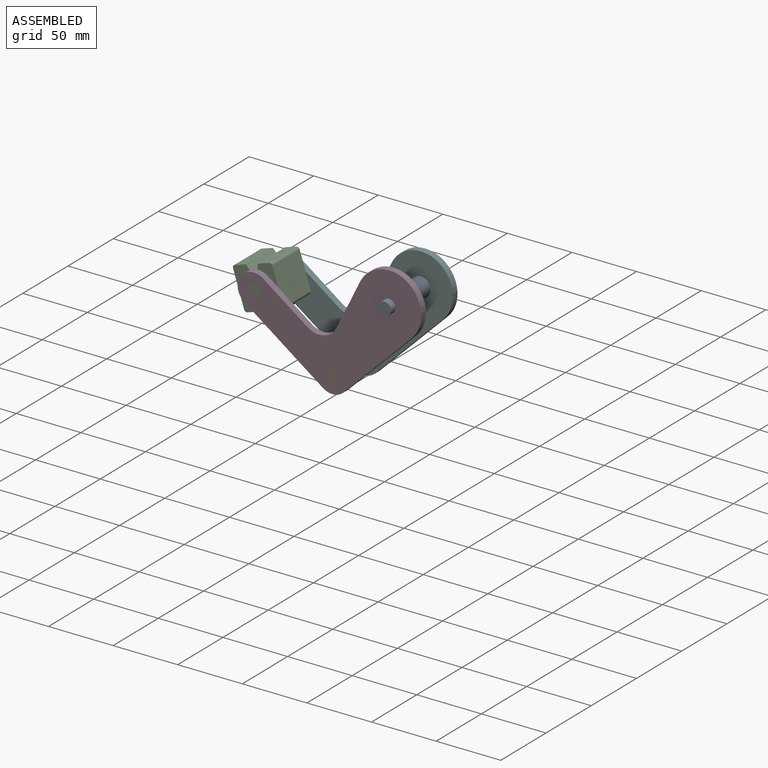
[diagram: assembled view]
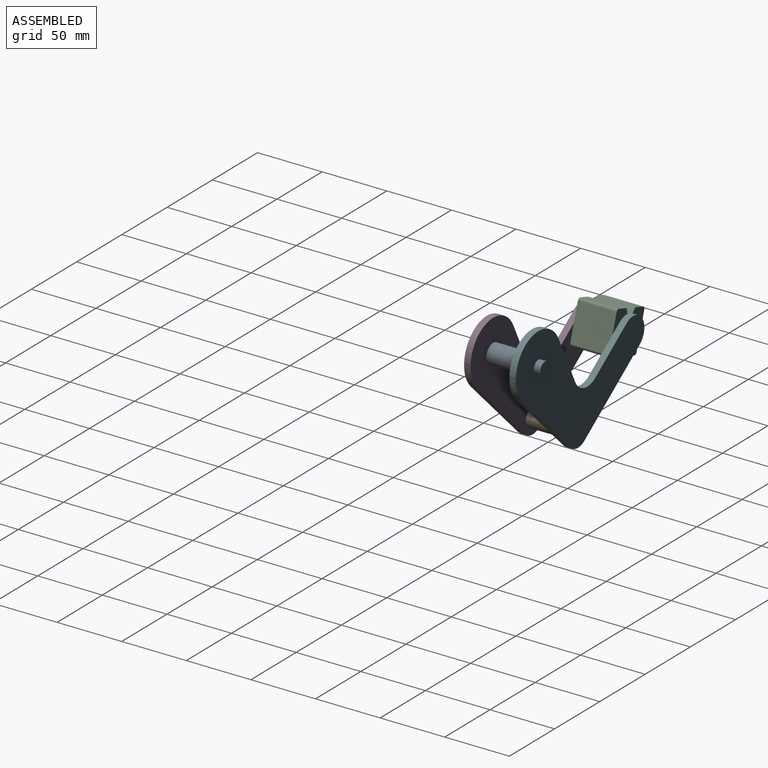
[diagram: assembled view, second angle]
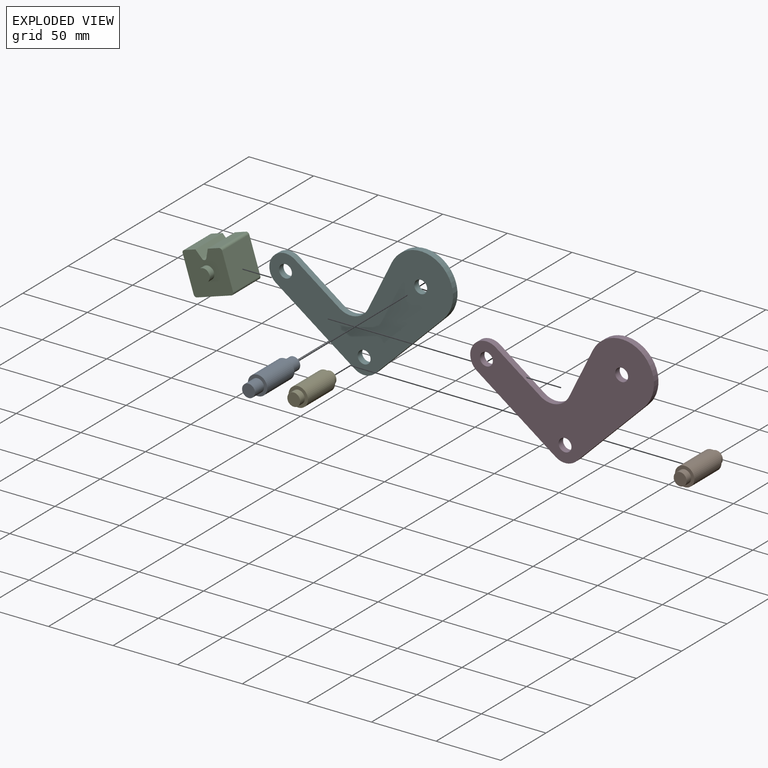
[diagram: exploded view]
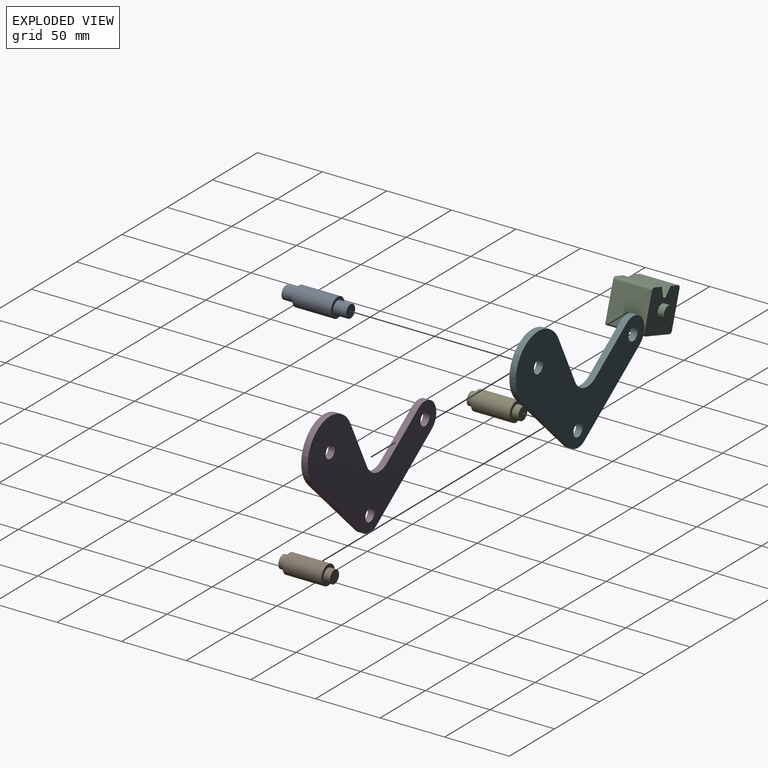
[diagram: exploded view, second angle]
ASSEMBLY  parts=5 mates=3
PART A: 7 faces, bbox 15x50x15 mm
  f0: cylinder r=7.5mm len=30mm, axis (0,-1,0), area 1413.7mm2, adj f2,f5
  f1: cylinder r=5mm len=10mm, axis (0,1,0), area 314.2mm2, adj f2,f3
  f2: plane 15x15mm, normal (0,-1,0), area 98.2mm2, adj f0,f1
  f3: plane 10x10mm, normal (0,-1,0), area 78.5mm2, adj f1
  f4: cylinder r=5mm len=10mm, axis (0,-1,0), area 314.2mm2, adj f5,f6
  f5: plane 15x15mm, normal (0,1,0), area 98.2mm2, adj f0,f4
  f6: plane 10x10mm, normal (0,1,0), area 78.5mm2, adj f4
PART B: 18 faces, bbox 32.1x40x32.1 mm
  f0: plane 30x6.42mm, normal (0.89,0,0.45), area 215.4mm2, adj f4,f6,f10,f13
  f1: plane 30x6.42mm, normal (-0.89,0,0.45), area 215.4mm2, adj f2,f4,f10,f13
  f2: plane 30x9.04mm, normal (0,0,1), area 271.2mm2, adj f1,f4,f10,f14
  f3: plane 30x28.08mm, normal (1,0,0), area 842.3mm2, adj f4,f10,f14,f15
  f4: plane 32.08x32.08mm, normal (0,-1,0), area 900.6mm2, adj f0,f1,f2,f3,f5,f6,f7,f9
  f5: plane 30x28.08mm, normal (0,0,-1), area 842.3mm2, adj f4,f10,f15,f16
  f6: plane 30x9.04mm, normal (0,0,1), area 271.2mm2, adj f0,f4,f10,f17
  f7: plane 30x28.08mm, normal (-1,0,0), area 842.3mm2, adj f4,f10,f16,f17
  f8: plane 10x10mm, normal (0,-1,0), area 78.5mm2, adj f9
  f9: cylinder r=5mm len=10mm, axis (0,1,0), area 157.1mm2, adj f4,f8
  f10: plane 32.08x32.08mm, normal (0,1,0), area 900.6mm2, adj f0,f1,f2,f3,f5,f6,f7,f12
  f11: plane 10x10mm, normal (0,1,0), area 78.5mm2, adj f12
  f12: cylinder r=5mm len=10mm, axis (0,-1,0), area 157.1mm2, adj f10,f11
  f13: cylinder r=2mm len=30mm, axis (0,1,0), area 132.9mm2, adj f0,f1,f4,f10
  f14: cylinder r=2mm len=30mm, axis (0,1,0), area 94.2mm2, adj f2,f3,f4,f10
  f15: cylinder r=2mm len=30mm, axis (0,-1,0), area 94.2mm2, adj f3,f4,f5,f10
  f16: cylinder r=2mm len=30mm, axis (0,1,0), area 94.2mm2, adj f4,f5,f7,f10
  f17: cylinder r=2mm len=30mm, axis (0,-1,0), area 94.2mm2, adj f4,f6,f7,f10
PART C: 13 faces, bbox 142.2x5x98.4 mm
  f0: plane 52.61x51.97mm, normal (0.7,0,-0.71), area 369.8mm2, adj f1,f9,f11,f12
  f1: cylinder r=25mm len=47.44mm, axis (0,-1,0), area 434.6mm2, adj f0,f2,f11,f12
  f2: plane 37.17x18.26mm, normal (-0.9,0,0.44), area 207.1mm2, adj f1,f3,f11,f12
  f3: cylinder r=15mm len=22.23mm, axis (0,-1,0), area 130.4mm2, adj f2,f4,f11,f12
  f4: plane 34.46x24.81mm, normal (0.58,0,0.81), area 212.3mm2, adj f3,f5,f11,f12
  f5: cylinder r=12.5mm len=22.64mm, axis (0,-1,0), area 196.3mm2, adj f4,f6,f11,f12
  f6: plane 60.86x43.82mm, normal (-0.58,0,-0.81), area 375mm2, adj f5,f9,f11,f12
  f7: cylinder r=5mm len=10mm, axis (0,-1,0), area 157.1mm2, adj f11,f12
  f8: cylinder r=5mm len=10mm, axis (0,-1,0), area 157.1mm2, adj f11,f12
  f9: cylinder r=12.5mm len=16.09mm, axis (0,-1,0), area 87.7mm2, adj f0,f6,f11,f12
  f10: cylinder r=5mm len=10mm, axis (0,-1,0), area 157.1mm2, adj f11,f12
  f11: plane 142.19x98.36mm, normal (0,1,0), area 5739.8mm2, adj f0,f1,f2,f3,f4,f5,f6,f7
  f12: plane 142.19x98.36mm, normal (0,-1,0), area 5739.8mm2, adj f0,f1,f2,f3,f4,f5,f6,f7
PART D: 7 faces, bbox 15x40x15 mm
  f0: cylinder r=7.5mm len=30mm, axis (0,-1,0), area 1413.7mm2, adj f2,f5
  f1: cylinder r=5mm len=10mm, axis (0,-1,0), area 157.1mm2, adj f2,f3
  f2: plane 15x15mm, normal (0,-1,0), area 98.2mm2, adj f0,f1
  f3: plane 10x10mm, normal (0,-1,0), area 78.5mm2, adj f1
  f4: cylinder r=5mm len=10mm, axis (0,1,0), area 157.1mm2, adj f5,f6
  f5: plane 15x15mm, normal (0,1,0), area 98.2mm2, adj f0,f4
  f6: plane 10x10mm, normal (0,1,0), area 78.5mm2, adj f4
PART E: same geometry as C
PLACE A t=(-5.16,-16.2,-5.33)mm fixed
PLACE B rot(axis=(0,-1,0),17.7deg) t=(-15.33,-16.2,25.76)mm
PLACE C t=(-5.16,-16.2,-5.33)mm
PLACE D t=(-5.16,-16.2,-5.33)mm
PLACE E t=(-5.16,18.8,-5.33)mm
MATE revolute B.f9 <-> C.f5  axis (0,-1,0) through (-109.84,-11.2,-22.37)mm
MATE fastened E.f7 <-> D.f0  axis (0,-1,0) through (-48.98,18.8,-66.19)mm
MATE fastened A.f0 <-> E.f1  axis (0,-1,0) through (-5.16,18.8,-5.33)mm
